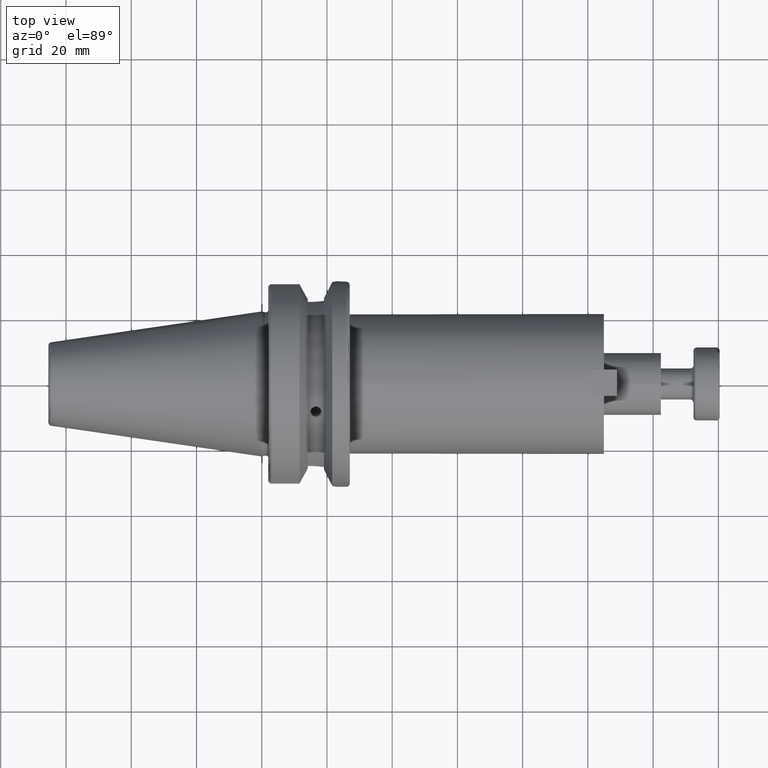
[diagram: clean part render]
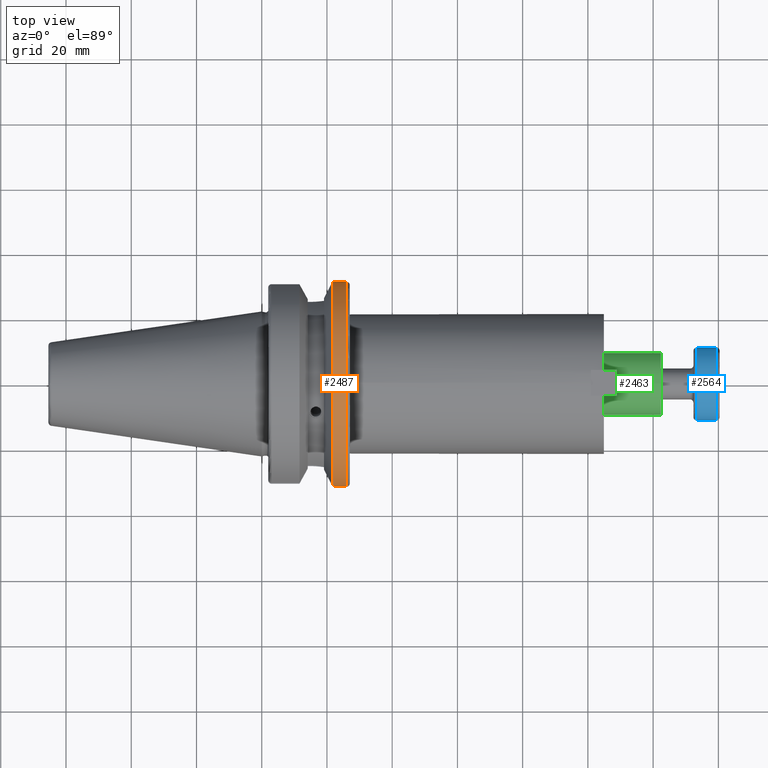
[diagram: same view with three faces highlighted in distinct colors, each labeled with its STEP entity id]
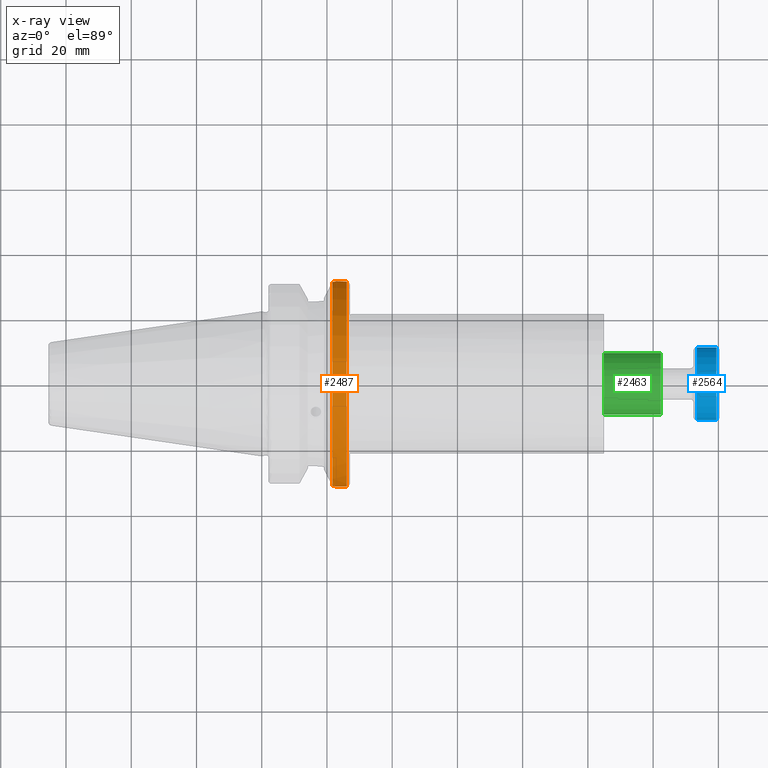
[diagram: x-ray of the same camera — body ghosted, the three highlighted faces saturated]
A machine part, top view with three faces highlighted in distinct colors.
The next image is the same camera in x-ray (body ghosted, the three faces saturated) — at least one of them is partly hidden behind the body in this view.
Their STEP definitions:

[orange] entity #2487 — the highlighted cylindrical surface (bore or boss wall) has radius 31.5 mm, axis along (1, 0, 0).
#523=B_SPLINE_CURVE_WITH_KNOTS('',3,(#4195,#4196,#4197,#4198,#4199,#4200),
 .UNSPECIFIED.,.F.,.F.,(4,2,4),(1.21877751840372,1.52344857393281,1.67526011710938),
 .UNSPECIFIED.);
#524=B_SPLINE_CURVE_WITH_KNOTS('',3,(#4202,#4203,#4204,#4205,#4206,#4207),
 .UNSPECIFIED.,.F.,.F.,(4,2,4),(0.762294919698049,0.914106462874623,1.21877751840372),
 .UNSPECIFIED.);
#529=B_SPLINE_CURVE_WITH_KNOTS('',3,(#4289,#4290,#4291,#4292,#4293,#4294,
#4295,#4296,#4297,#4298),.UNSPECIFIED.,.F.,.F.,(4,2,2,2,4),(3.19984995650548,
3.35166149968205,3.65633255521115,3.96100361074024,4.11281515391681),
 .UNSPECIFIED.);
#588=CYLINDRICAL_SURFACE('',#2818,31.5);
#639=CIRCLE('',#2819,31.5);
#640=CIRCLE('',#2820,31.5);
#641=CIRCLE('',#2821,31.5);
#642=CIRCLE('',#2822,31.5);
#795=FACE_OUTER_BOUND('',#929,.T.);
#929=EDGE_LOOP('',(#2010,#2011,#2012,#2013,#2014,#2015,#2016,#2017,#2018));
#1079=LINE('',#4285,#1213);
#1213=VECTOR('',#3300,31.5);
#1362=VERTEX_POINT('',#4187);
#1363=VERTEX_POINT('',#4194);
#1364=VERTEX_POINT('',#4201);
#1382=VERTEX_POINT('',#4282);
#1383=VERTEX_POINT('',#4283);
#1384=VERTEX_POINT('',#4286);
#1385=VERTEX_POINT('',#4288);
#1592=EDGE_CURVE('',#1363,#1362,#523,.T.);
#1593=EDGE_CURVE('',#1364,#1363,#524,.T.);
#1615=EDGE_CURVE('',#1382,#1383,#639,.T.);
#1616=EDGE_CURVE('',#1382,#1363,#1079,.T.);
#1617=EDGE_CURVE('',#1362,#1384,#640,.T.);
#1618=EDGE_CURVE('',#1384,#1385,#529,.T.);
#1619=EDGE_CURVE('',#1385,#1364,#641,.T.);
#1620=EDGE_CURVE('',#1383,#1382,#642,.T.);
#2010=ORIENTED_EDGE('',*,*,#1615,.F.);
#2011=ORIENTED_EDGE('',*,*,#1616,.T.);
#2012=ORIENTED_EDGE('',*,*,#1592,.T.);
#2013=ORIENTED_EDGE('',*,*,#1617,.T.);
#2014=ORIENTED_EDGE('',*,*,#1618,.T.);
#2015=ORIENTED_EDGE('',*,*,#1619,.T.);
#2016=ORIENTED_EDGE('',*,*,#1593,.T.);
#2017=ORIENTED_EDGE('',*,*,#1616,.F.);
#2018=ORIENTED_EDGE('',*,*,#1620,.F.);
#2487=ADVANCED_FACE('',(#795),#588,.T.);
#2818=AXIS2_PLACEMENT_3D('',#4281,#3296,#3297);
#2819=AXIS2_PLACEMENT_3D('',#4284,#3298,#3299);
#2820=AXIS2_PLACEMENT_3D('',#4287,#3301,#3302);
#2821=AXIS2_PLACEMENT_3D('',#4299,#3303,#3304);
#2822=AXIS2_PLACEMENT_3D('',#4300,#3305,#3306);
#3296=DIRECTION('center_axis',(1.,0.,0.));
#3297=DIRECTION('ref_axis',(0.,1.,0.));
#3298=DIRECTION('center_axis',(1.,0.,0.));
#3299=DIRECTION('ref_axis',(0.,0.,-1.));
#3300=DIRECTION('',(-1.,0.,0.));
#3301=DIRECTION('center_axis',(1.,0.,0.));
#3302=DIRECTION('ref_axis',(0.,0.,-1.));
#3303=DIRECTION('center_axis',(1.,0.,0.));
#3304=DIRECTION('ref_axis',(0.,0.,-1.));
#3305=DIRECTION('center_axis',(1.,0.,0.));
#3306=DIRECTION('ref_axis',(0.,0.,-1.));
#4187=CARTESIAN_POINT('',(21.6309636926618,-31.1782420264945,-4.49079326370462));
#4194=CARTESIAN_POINT('',(23.,-31.5,-2.34515234289152E-15));
#4195=CARTESIAN_POINT('Ctrl Pts',(23.,-31.5,-1.11022302462516E-15));
#4196=CARTESIAN_POINT('Ctrl Pts',(23.,-31.5,-1.01557018509698));
#4197=CARTESIAN_POINT('Ctrl Pts',(22.7961189876535,-31.445974204441,-2.09580170425552));
#4198=CARTESIAN_POINT('Ctrl Pts',(22.1796133812044,-31.2997625705024,-3.5806535819887));
#4199=CARTESIAN_POINT('Ctrl Pts',(21.92482980253,-31.2412125047166,-4.05360796141052));
#4200=CARTESIAN_POINT('Ctrl Pts',(21.6309636926618,-31.1782420264945,-4.49079326370462));
#4201=CARTESIAN_POINT('',(21.6309636926618,-31.1782420264945,4.49079326370462));
#4202=CARTESIAN_POINT('Ctrl Pts',(21.6309636926618,-31.1782420264945,4.49079326370462));
#4203=CARTESIAN_POINT('Ctrl Pts',(21.92482980253,-31.2412125047166,4.05360796141052));
#4204=CARTESIAN_POINT('Ctrl Pts',(22.1796133812044,-31.2997625705024,3.5806535819887));
#4205=CARTESIAN_POINT('Ctrl Pts',(22.7961189876535,-31.445974204441,2.09580170425552));
#4206=CARTESIAN_POINT('Ctrl Pts',(23.,-31.5,1.01557018509698));
#4207=CARTESIAN_POINT('Ctrl Pts',(23.,-31.5,-1.11022302462516E-15));
#4281=CARTESIAN_POINT('Origin',(23.8154818463309,0.,0.));
#4282=CARTESIAN_POINT('',(26.,-31.5,-3.85763741731416E-15));
#4283=CARTESIAN_POINT('',(26.,-3.85763741731416E-15,31.5));
#4284=CARTESIAN_POINT('Origin',(26.,0.,0.));
#4285=CARTESIAN_POINT('',(23.8154818463309,-31.5,-3.85763741731416E-15));
#4286=CARTESIAN_POINT('',(21.6309636926618,31.1782420264945,-4.49079326370462));
#4287=CARTESIAN_POINT('Origin',(21.6309636926618,0.,0.));
#4288=CARTESIAN_POINT('',(21.6309636926618,31.1782420264945,4.49079326370462));
#4289=CARTESIAN_POINT('Ctrl Pts',(21.6309636926618,31.1782420264945,-4.49079326370462));
#4290=CARTESIAN_POINT('Ctrl Pts',(21.92482980253,31.2412125047166,-4.05360796141052));
#4291=CARTESIAN_POINT('Ctrl Pts',(22.1796133812043,31.2997625705024,-3.5806535819887));
#4292=CARTESIAN_POINT('Ctrl Pts',(22.7961189876535,31.445974204441,-2.09580170425552));
#4293=CARTESIAN_POINT('Ctrl Pts',(23.,31.5,-1.01557018509698));
#4294=CARTESIAN_POINT('Ctrl Pts',(23.,31.5,1.01557018509698));
#4295=CARTESIAN_POINT('Ctrl Pts',(22.7961189876535,31.445974204441,2.09580170425552));
#4296=CARTESIAN_POINT('Ctrl Pts',(22.1796133812044,31.2997625705024,3.5806535819887));
#4297=CARTESIAN_POINT('Ctrl Pts',(21.92482980253,31.2412125047166,4.05360796141052));
#4298=CARTESIAN_POINT('Ctrl Pts',(21.6309636926618,31.1782420264945,4.49079326370462));
#4299=CARTESIAN_POINT('Origin',(21.6309636926618,0.,0.));
#4300=CARTESIAN_POINT('Origin',(26.,0.,0.));

[blue] entity #2564 — the highlighted cylindrical surface (bore or boss wall) has radius 11.2 mm, axis along (-1, 0, 0).
#604=CYLINDRICAL_SURFACE('',#3007,11.2);
#728=CIRCLE('',#3005,11.2);
#729=CIRCLE('',#3006,11.2);
#730=CIRCLE('',#3008,11.2);
#731=CIRCLE('',#3009,11.2);
#872=FACE_OUTER_BOUND('',#1020,.T.);
#1020=EDGE_LOOP('',(#2369,#2370,#2371,#2372,#2373,#2374));
#1157=LINE('',#5022,#1291);
#1291=VECTOR('',#3754,11.2);
#1485=VERTEX_POINT('',#5015);
#1486=VERTEX_POINT('',#5017);
#1487=VERTEX_POINT('',#5021);
#1488=VERTEX_POINT('',#5023);
#1782=EDGE_CURVE('',#1485,#1486,#728,.T.);
#1783=EDGE_CURVE('',#1486,#1485,#729,.T.);
#1784=EDGE_CURVE('',#1486,#1487,#1157,.T.);
#1785=EDGE_CURVE('',#1488,#1487,#730,.T.);
#1786=EDGE_CURVE('',#1487,#1488,#731,.T.);
#2369=ORIENTED_EDGE('',*,*,#1783,.F.);
#2370=ORIENTED_EDGE('',*,*,#1784,.T.);
#2371=ORIENTED_EDGE('',*,*,#1785,.F.);
#2372=ORIENTED_EDGE('',*,*,#1786,.F.);
#2373=ORIENTED_EDGE('',*,*,#1784,.F.);
#2374=ORIENTED_EDGE('',*,*,#1782,.F.);
#2564=ADVANCED_FACE('',(#872),#604,.T.);
#3005=AXIS2_PLACEMENT_3D('',#5018,#3748,#3749);
#3006=AXIS2_PLACEMENT_3D('',#5019,#3750,#3751);
#3007=AXIS2_PLACEMENT_3D('',#5020,#3752,#3753);
#3008=AXIS2_PLACEMENT_3D('',#5024,#3755,#3756);
#3009=AXIS2_PLACEMENT_3D('',#5025,#3757,#3758);
#3748=DIRECTION('center_axis',(1.,0.,0.));
#3749=DIRECTION('ref_axis',(0.,-1.,1.83697019872103E-16));
#3750=DIRECTION('center_axis',(1.,0.,0.));
#3751=DIRECTION('ref_axis',(0.,-1.,1.83697019872103E-16));
#3752=DIRECTION('center_axis',(1.,0.,0.));
#3753=DIRECTION('ref_axis',(0.,1.,0.));
#3754=DIRECTION('',(-1.,0.,0.));
#3755=DIRECTION('center_axis',(-1.,0.,0.));
#3756=DIRECTION('ref_axis',(0.,-1.,1.83697019872103E-16));
#3757=DIRECTION('center_axis',(-1.,0.,0.));
#3758=DIRECTION('ref_axis',(0.,-1.,1.83697019872103E-16));
#5015=CARTESIAN_POINT('',(7.,-1.37160441504504E-15,11.2));
#5017=CARTESIAN_POINT('',(7.,-11.2,-1.37160441504504E-15));
#5018=CARTESIAN_POINT('Origin',(7.,0.,0.));
#5019=CARTESIAN_POINT('Origin',(7.,0.,0.));
#5020=CARTESIAN_POINT('Origin',(4.,0.,0.));
#5021=CARTESIAN_POINT('',(1.,-11.2,-1.37160441504504E-15));
#5022=CARTESIAN_POINT('',(4.,-11.2,-1.37160441504504E-15));
#5023=CARTESIAN_POINT('',(1.,-1.37160441504504E-15,11.2));
#5024=CARTESIAN_POINT('Origin',(1.,0.,0.));
#5025=CARTESIAN_POINT('Origin',(1.,0.,0.));

[green] entity #2463 — the highlighted cylindrical surface (bore or boss wall) has radius 9.525 mm, axis along (1, 0, 0).
#574=CYLINDRICAL_SURFACE('',#2764,9.52500000000001);
#614=CIRCLE('',#2739,9.525);
#627=CIRCLE('',#2765,9.52500000000001);
#771=FACE_OUTER_BOUND('',#900,.T.);
#900=EDGE_LOOP('',(#1883,#1884,#1885,#1886));
#1049=LINE('',#4012,#1183);
#1183=VECTOR('',#3162,9.52500000000001);
#1308=VERTEX_POINT('',#3879);
#1328=VERTEX_POINT('',#4010);
#1511=EDGE_CURVE('',#1308,#1308,#614,.T.);
#1541=EDGE_CURVE('',#1328,#1328,#627,.T.);
#1542=EDGE_CURVE('',#1328,#1308,#1049,.T.);
#1883=ORIENTED_EDGE('',*,*,#1541,.F.);
#1884=ORIENTED_EDGE('',*,*,#1542,.T.);
#1885=ORIENTED_EDGE('',*,*,#1511,.T.);
#1886=ORIENTED_EDGE('',*,*,#1542,.F.);
#2463=ADVANCED_FACE('',(#771),#574,.T.);
#2739=AXIS2_PLACEMENT_3D('',#3880,#3095,#3096);
#2764=AXIS2_PLACEMENT_3D('',#4009,#3158,#3159);
#2765=AXIS2_PLACEMENT_3D('',#4011,#3160,#3161);
#3095=DIRECTION('center_axis',(1.,0.,0.));
#3096=DIRECTION('ref_axis',(0.,0.,-1.));
#3158=DIRECTION('center_axis',(1.,0.,0.));
#3159=DIRECTION('ref_axis',(0.,0.,-1.));
#3160=DIRECTION('center_axis',(1.,0.,0.));
#3161=DIRECTION('ref_axis',(0.,0.,-1.));
#3162=DIRECTION('',(-1.,0.,0.));
#3879=CARTESIAN_POINT('',(104.9,-1.16647607618785E-15,9.52500000000001));
#3880=CARTESIAN_POINT('Origin',(104.9,0.,0.));
#4009=CARTESIAN_POINT('Origin',(113.64,0.,0.));
#4010=CARTESIAN_POINT('',(122.38,-1.16647607618785E-15,9.52500000000001));
#4011=CARTESIAN_POINT('Origin',(122.38,0.,0.));
#4012=CARTESIAN_POINT('',(113.64,-1.16647607618785E-15,9.52500000000001));